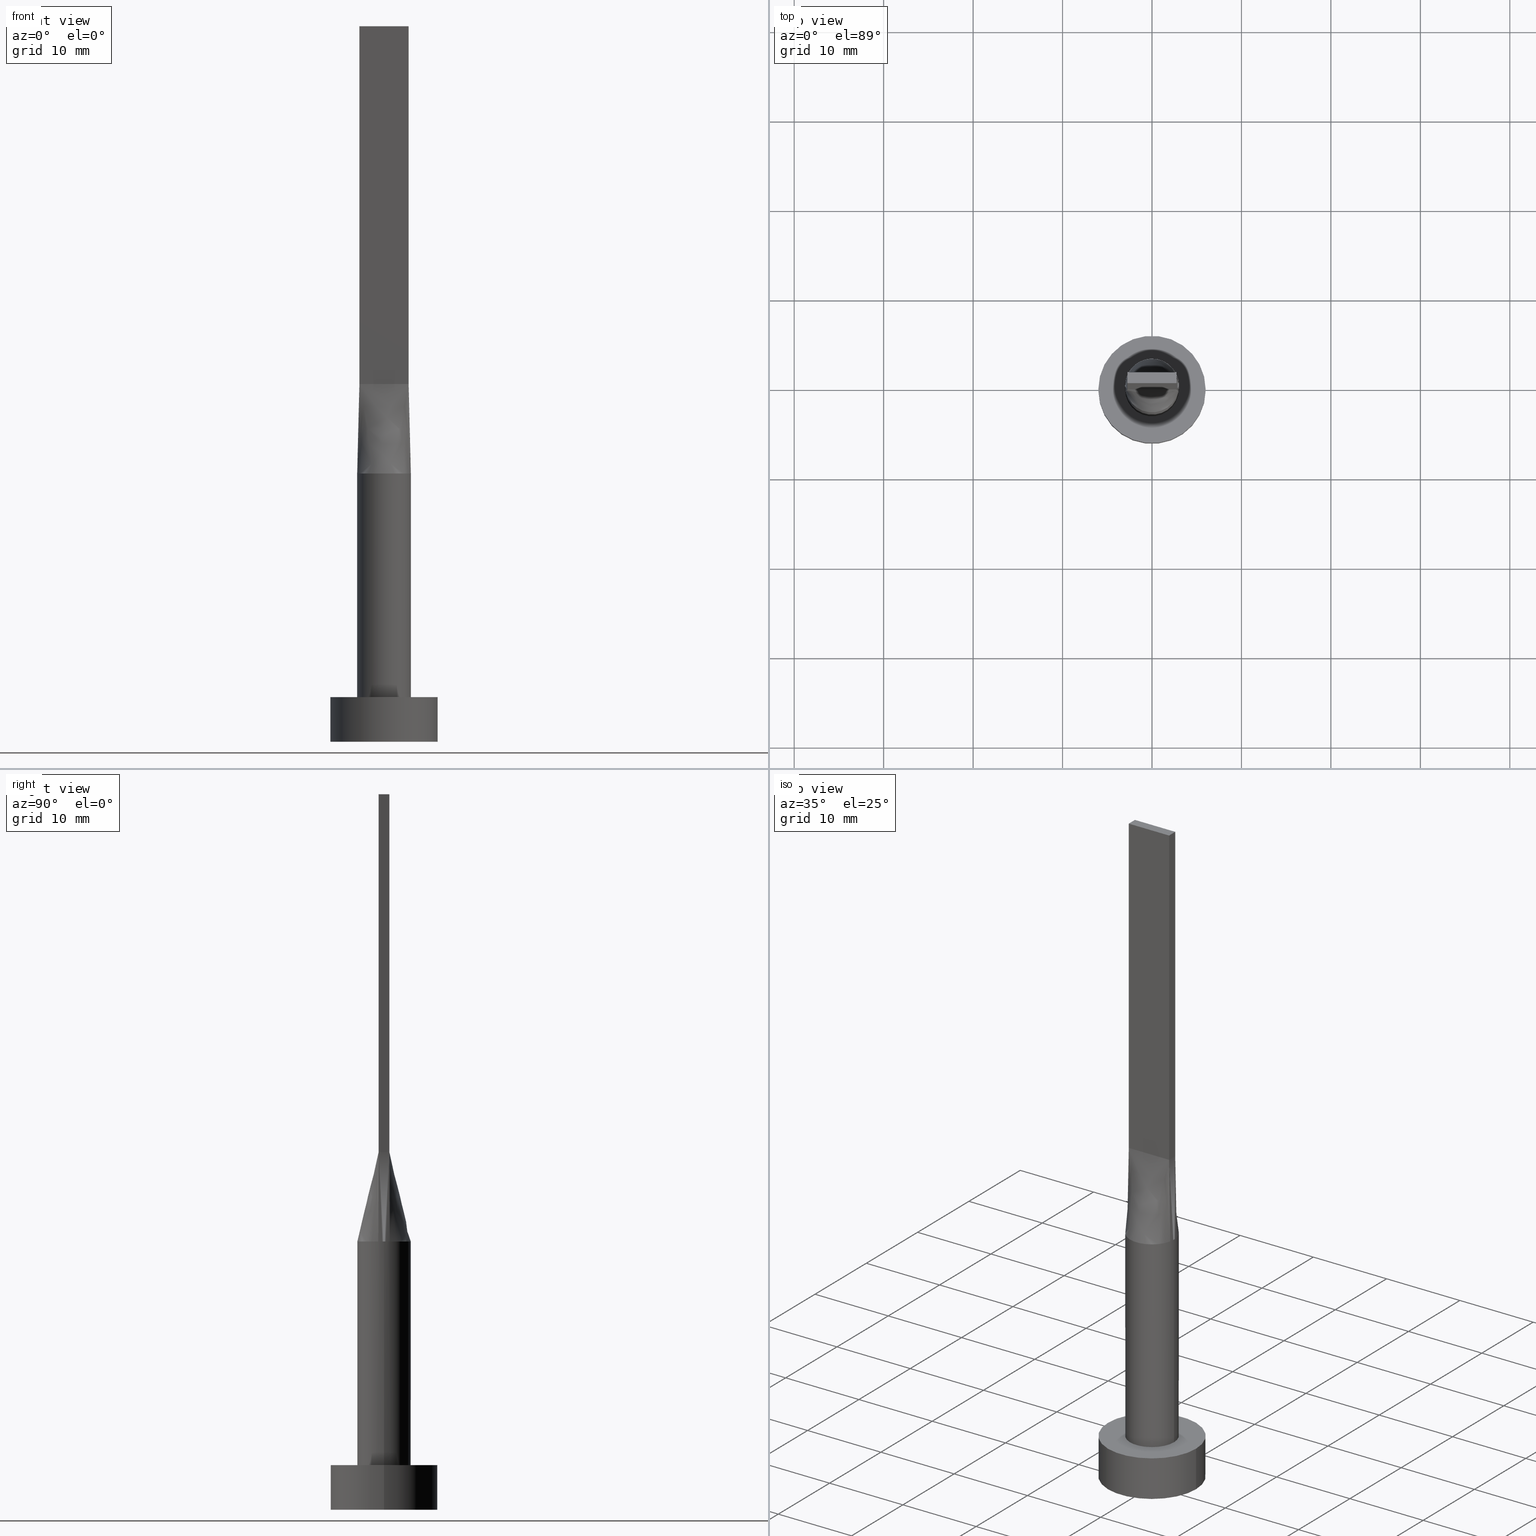
[diagram: canonical four-view strip — front | top / right | iso, engineering-drawing reading convention]
A machine part, canonical four-view strip (front | top / right | iso — engineering-drawing reading convention). The complete STEP part file that produces these views, byte-faithful:
ISO-10303-21;
HEADER;
FILE_DESCRIPTION (( 'STEP AP203' ),
    '1' );
FILE_NAME ('b819.STEP',
    '2023-02-13T10:30:02',
    ( '' ),
    ( '' ),
    'SwSTEP 2.0',
    'SolidWorks 2019',
    '' );
FILE_SCHEMA (( 'CONFIG_CONTROL_DESIGN' ));
ENDSEC;

DATA;
#1 = LINE ( 'NONE', #221, #503 ) ;
#2 = EDGE_CURVE ( 'NONE', #547, #362, #177, .T. ) ;
#3 = EDGE_LOOP ( 'NONE', ( #528, #130, #449, #303, #386, #399 ) ) ;
#4 = CARTESIAN_POINT ( 'NONE',  ( -2.750000000000000000, 0.6000000000000001998, 40.00000000000000000 ) ) ;
#5 = ORIENTED_EDGE ( 'NONE', *, *, #532, .T. ) ;
#6 = ORIENTED_EDGE ( 'NONE', *, *, #400, .T. ) ;
#7 = AXIS2_PLACEMENT_3D ( 'NONE', #405, #450, #363 ) ;
#8 = CARTESIAN_POINT ( 'NONE',  ( -2.520833333333333037, 0.6000000000000000888, 39.99999999999999289 ) ) ;
#9 = CARTESIAN_POINT ( 'NONE',  ( 2.750000000000000000, -0.5999999999999997558, 80.00000000000000000 ) ) ;
#10 = CARTESIAN_POINT ( 'NONE',  ( -2.518011668798964653, 1.657305971825549840, 30.00000000000000711 ) ) ;
#11 = CC_DESIGN_PERSON_AND_ORGANIZATION_ASSIGNMENT ( #373, #562, ( #297 ) ) ;
#12 = FACE_OUTER_BOUND ( 'NONE', #257, .T. ) ;
#13 = DIRECTION ( 'NONE',  ( -1.000000000000000000, 0.000000000000000000, 0.000000000000000000 ) ) ;
#14 = FACE_OUTER_BOUND ( 'NONE', #288, .T. ) ;
#15 = DIRECTION ( 'NONE',  ( 1.000000000000000000, 0.000000000000000000, -0.000000000000000000 ) ) ;
#16 = LOCAL_TIME ( 11, 30, 2.000000000000000000, #285 ) ;
#17 = DIRECTION ( 'NONE',  ( 0.000000000000000000, 0.000000000000000000, 1.000000000000000000 ) ) ;
#18 = CARTESIAN_POINT ( 'NONE',  ( 0.000000000000000000, 0.000000000000000000, 5.000000000000000000 ) ) ;
#19 = PERSON_AND_ORGANIZATION ( #459, #33 ) ;
#20 = APPROVAL_ROLE ( '' ) ;
#21 = VERTEX_POINT ( 'NONE', #229 ) ;
#22 = AXIS2_PLACEMENT_3D ( 'NONE', #18, #52, #398 ) ;
#23 = AXIS2_PLACEMENT_3D ( 'NONE', #389, #252, #581 ) ;
#24 = COORDINATED_UNIVERSAL_TIME_OFFSET ( 1, 0, .AHEAD. ) ;
#25 = FACE_OUTER_BOUND ( 'NONE', #454, .T. ) ;
#26 = CARTESIAN_POINT ( 'NONE',  ( -1.145833333333331705, -0.5999999999999994227, 39.99999999999999289 ) ) ;
#27 = EDGE_CURVE ( 'NONE', #94, #579, #192, .T. ) ;
#28 = ORIENTED_EDGE ( 'NONE', *, *, #573, .T. ) ;
#29 = LINE ( 'NONE', #544, #565 ) ;
#30 = PERSON_AND_ORGANIZATION_ROLE ( 'creator' ) ;
#31 = CARTESIAN_POINT ( 'NONE',  ( -2.931047284229977734, -0.6395012256501755310, 30.00000000000000355 ) ) ;
#32 = ORIENTED_EDGE ( 'NONE', *, *, #421, .F. ) ;
#33 = ORGANIZATION ( 'NEUR�EN�', 'NEUR�EN�', '' ) ;
#34 = CARTESIAN_POINT ( 'NONE',  ( -2.999603793582328315, -7.025298958605770567E-16, 30.00000000000000355 ) ) ;
#35 = CARTESIAN_POINT ( 'NONE',  ( -0.4583333333333322046, -0.5999999999999994227, 39.99999999999999289 ) ) ;
#36 = EDGE_LOOP ( 'NONE', ( #337, #500 ) ) ;
#37 = CARTESIAN_POINT ( 'NONE',  ( 1.517787371616672099, 2.616501225271827824, 30.00000000000000711 ) ) ;
#38 = PLANE ( 'NONE',  #7 ) ;
#39 = PRODUCT_DEFINITION ( 'NEZN�M�', '', #557, #382 ) ;
#40 = ORIENTED_EDGE ( 'NONE', *, *, #543, .F. ) ;
#41 = CARTESIAN_POINT ( 'NONE',  ( 2.328745122427009040, 1.922758842442225946, 30.00000000000000355 ) ) ;
#42 = EDGE_LOOP ( 'NONE', ( #5, #28, #307, #249 ) ) ;
#43 = UNCERTAINTY_MEASURE_WITH_UNIT (LENGTH_MEASURE( 1.000000000000000082E-05 ), #239, 'distance_accuracy_value', 'NONE');
#44 = ORIENTED_EDGE ( 'NONE', *, *, #199, .T. ) ;
#45 = ORIENTED_EDGE ( 'NONE', *, *, #493, .T. ) ;
#46 = AXIS2_PLACEMENT_3D ( 'NONE', #380, #290, #512 ) ;
#47 = PLANE ( 'NONE',  #410 ) ;
#48 = DIRECTION ( 'NONE',  ( -0.000000000000000000, -0.000000000000000000, -1.000000000000000000 ) ) ;
#49 = B_SPLINE_SURFACE_WITH_KNOTS ( 'NONE', 3, 1, ( 
 ( #266, #4 ),
 ( #176, #440 ),
 ( #446, #50 ),
 ( #312, #87 ),
 ( #55, #391 ),
 ( #353, #186 ) ),
 .UNSPECIFIED., .F., .F., .F.,
 ( 4, 2, 4 ),
 ( 2, 2 ),
 ( 0.000000000000000000, 0.5000000000000000000, 1.000000000000000000 ),
 ( 0.000000000000000000, 1.000000000000000000 ),
 .UNSPECIFIED. ) ;
#50 = CARTESIAN_POINT ( 'NONE',  ( -2.750000000000000000, 0.2000000000000000111, 39.99999999999999289 ) ) ;
#51 = LINE ( 'NONE', #167, #165 ) ;
#52 = DIRECTION ( 'NONE',  ( 0.000000000000000000, 0.000000000000000000, 1.000000000000000000 ) ) ;
#53 = EDGE_LOOP ( 'NONE', ( #392, #525, #56, #324 ) ) ;
#54 = LOCAL_TIME ( 11, 30, 2.000000000000000000, #553 ) ;
#55 = CARTESIAN_POINT ( 'NONE',  ( -2.976487486186430331, -0.4312336333497656105, 30.00000000000000355 ) ) ;
#56 = ORIENTED_EDGE ( 'NONE', *, *, #436, .F. ) ;
#57 = VERTEX_POINT ( 'NONE', #272 ) ;
#58 = APPROVAL_DATE_TIME ( #150, #73 ) ;
#59 = DIRECTION ( 'NONE',  ( 1.000000000000000000, 0.000000000000000000, 0.000000000000000000 ) ) ;
#60 = EDGE_CURVE ( 'NONE', #362, #547, #564, .T. ) ;
#61 = CARTESIAN_POINT ( 'NONE',  ( 2.328745122427008152, -1.922758842442226390, 29.99999999999999645 ) ) ;
#62 = APPLICATION_PROTOCOL_DEFINITION ( 'international standard', 'config_control_design', 1994, #96 ) ;
#63 = DIRECTION ( 'NONE',  ( -0.000000000000000000, -0.000000000000000000, -1.000000000000000000 ) ) ;
#64 = EDGE_CURVE ( 'NONE', #546, #278, #451, .T. ) ;
#65 = CC_DESIGN_APPROVAL ( #414, ( #557 ) ) ;
#66 = COORDINATED_UNIVERSAL_TIME_OFFSET ( 1, 0, .AHEAD. ) ;
#67 = CARTESIAN_POINT ( 'NONE',  ( -6.000000000000000888, 0.000000000000000000, 5.000000000000000000 ) ) ;
#68 = LINE ( 'NONE', #250, #502 ) ;
#69 = CARTESIAN_POINT ( 'NONE',  ( -2.750000000000000000, 0.6000000000000001998, 80.00000000000000000 ) ) ;
#70 = FACE_OUTER_BOUND ( 'NONE', #321, .T. ) ;
#71 = CARTESIAN_POINT ( 'NONE',  ( 1.829136458871247761, 2.402980488111650992, 30.00000000000001066 ) ) ;
#72 = CIRCLE ( 'NONE', #131, 3.000000000000000444 ) ;
#73 = APPROVAL ( #455, 'NEUR�EN�' ) ;
#74 = CIRCLE ( 'NONE', #23, 3.000000000000000444 ) ;
#75 = FACE_OUTER_BOUND ( 'NONE', #78, .T. ) ;
#76 = ORIENTED_EDGE ( 'NONE', *, *, #445, .T. ) ;
#77 = VERTEX_POINT ( 'NONE', #9 ) ;
#78 = EDGE_LOOP ( 'NONE', ( #260, #95 ) ) ;
#79 = CARTESIAN_POINT ( 'NONE',  ( -0.4026715616377299356, 2.999999999999999556, 30.00000000000001066 ) ) ;
#80 = CARTESIAN_POINT ( 'NONE',  ( -2.840523642114988867, -0.6197506128250873658, 35.00000000000000000 ) ) ;
#81 = DIRECTION ( 'NONE',  ( -0.000000000000000000, -0.000000000000000000, -1.000000000000000000 ) ) ;
#82 = VERTEX_POINT ( 'NONE', #309 ) ;
#83 = CIRCLE ( 'NONE', #343, 6.000000000000000888 ) ;
#84 = DIRECTION ( 'NONE',  ( -0.000000000000000000, -0.000000000000000000, -1.000000000000000000 ) ) ;
#85 = ORIENTED_EDGE ( 'NONE', *, *, #304, .T. ) ;
#86 = VERTEX_POINT ( 'NONE', #484 ) ;
#87 = CARTESIAN_POINT ( 'NONE',  ( -2.750000000000000000, -0.1999999999999998723, 39.99999999999999289 ) ) ;
#88 = CARTESIAN_POINT ( 'NONE',  ( -2.792624347712117761, 1.135030881087315313, 30.00000000000001066 ) ) ;
#89 = DIRECTION ( 'NONE',  ( -0.000000000000000000, 0.000000000000000000, -1.000000000000000000 ) ) ;
#90 = ORIENTED_EDGE ( 'NONE', *, *, #236, .T. ) ;
#91 = CARTESIAN_POINT ( 'NONE',  ( -2.750000000000000000, 0.6000000000000001998, 40.00000000000000000 ) ) ;
#92 = CARTESIAN_POINT ( 'NONE',  ( 2.999207587164657074, 0.2156168166748827775, 30.00000000000000355 ) ) ;
#93 = CARTESIAN_POINT ( 'NONE',  ( -2.931047284229977290, 0.6395012256501755310, 30.00000000000000355 ) ) ;
#94 = VERTEX_POINT ( 'NONE', #404 ) ;
#95 = ORIENTED_EDGE ( 'NONE', *, *, #60, .T. ) ;
#96 = APPLICATION_CONTEXT ( 'configuration controlled 3d designs of mechanical parts and assemblies' ) ;
#97 = APPROVAL_PERSON_ORGANIZATION ( #240, #414, #415 ) ;
#98 = CARTESIAN_POINT ( 'NONE',  ( -2.750000000000000000, -0.5999999999999994227, 80.00000000000000000 ) ) ;
#99 = CARTESIAN_POINT ( 'NONE',  ( -2.750000000000000000, 0.6000000000000001998, 40.00000000000000000 ) ) ;
#100 = DIRECTION ( 'NONE',  ( 0.000000000000000000, 0.000000000000000000, 1.000000000000000000 ) ) ;
#101 = CARTESIAN_POINT ( 'NONE',  ( 2.976487486186430331, 0.4312336333497658880, 30.00000000000000355 ) ) ;
#102 = LINE ( 'NONE', #574, #438 ) ;
#103 = PLANE ( 'NONE',  #533 ) ;
#104 = CALENDAR_DATE ( 2023, 13, 2 ) ;
#105 = CARTESIAN_POINT ( 'NONE',  ( -2.792624347712117761, 1.135030881087315313, 30.00000000000001066 ) ) ;
#106 = AXIS2_PLACEMENT_3D ( 'NONE', #132, #486, #541 ) ;
#107 = PERSON_AND_ORGANIZATION_ROLE ( 'design_owner' ) ;
#108 = ADVANCED_FACE ( 'NONE', ( #14 ), #133, .F. ) ;
#109 =( NAMED_UNIT ( * ) PLANE_ANGLE_UNIT ( ) SI_UNIT ( $, .RADIAN. ) );
#110 = CYLINDRICAL_SURFACE ( 'NONE', #377, 6.000000000000000888 ) ;
#111 = CARTESIAN_POINT ( 'NONE',  ( -0.2291666666666657692, -0.5999999999999995337, 39.99999999999999289 ) ) ;
#112 = PRODUCT ( 'b819', 'b819', '', ( #282 ) ) ;
#113 = AXIS2_PLACEMENT_3D ( 'NONE', #311, #524, #152 ) ;
#114 = DATE_AND_TIME ( #151, #354 ) ;
#115 = CARTESIAN_POINT ( 'NONE',  ( -1.517787371616672321, -2.616501225271827380, 30.00000000000000355 ) ) ;
#116 = ADVANCED_FACE ( 'NONE', ( #188 ), #183, .F. ) ;
#117 = CARTESIAN_POINT ( 'NONE',  ( 2.750000000000000000, 0.6000000000000001998, 80.00000000000000000 ) ) ;
#118 = CARTESIAN_POINT ( 'NONE',  ( 2.328745122427009040, 1.922758842442225946, 30.00000000000000355 ) ) ;
#119 = EDGE_CURVE ( 'NONE', #204, #488, #394, .T. ) ;
#120 = CARTESIAN_POINT ( 'NONE',  ( -0.4583333333333300397, 0.6000000000000000888, 39.99999999999999289 ) ) ;
#121 = CARTESIAN_POINT ( 'NONE',  ( -2.792624347712116428, -1.135030881087314647, 30.00000000000000355 ) ) ;
#122 = CARTESIAN_POINT ( 'NONE',  ( 1.517787371616672099, 2.616501225271827824, 30.00000000000000711 ) ) ;
#123 = CARTESIAN_POINT ( 'NONE',  ( 2.878980386154874616, 0.8781411751610636029, 30.00000000000000355 ) ) ;
#124 = CARTESIAN_POINT ( 'NONE',  ( 1.604166666666666963, -0.5999999999999996447, 39.99999999999999289 ) ) ;
#125 = CARTESIAN_POINT ( 'NONE',  ( -0.8041209001220690489, 2.916015559847871419, 30.00000000000001066 ) ) ;
#126 = EDGE_CURVE ( 'NONE', #390, #496, #102, .T. ) ;
#127 = VERTEX_POINT ( 'NONE', #161 ) ;
#128 = CARTESIAN_POINT ( 'NONE',  ( 2.750000000000000000, 0.6000000000000001998, 80.00000000000000000 ) ) ;
#129 = VECTOR ( 'NONE', #470, 1000.000000000000000 ) ;
#130 = ORIENTED_EDGE ( 'NONE', *, *, #126, .T. ) ;
#131 = AXIS2_PLACEMENT_3D ( 'NONE', #549, #187, #59 ) ;
#132 = CARTESIAN_POINT ( 'NONE',  ( 0.000000000000000000, 0.000000000000000000, 5.000000000000000000 ) ) ;
#133 = PLANE ( 'NONE',  #317 ) ;
#134 = ADVANCED_FACE ( 'NONE', ( #209 ), #340, .T. ) ;
#135 = CARTESIAN_POINT ( 'NONE',  ( 2.750000000000000000, -0.3999999999999994671, 39.99999999999999289 ) ) ;
#136 = LINE ( 'NONE', #347, #306 ) ;
#137 = ORIENTED_EDGE ( 'NONE', *, *, #199, .F. ) ;
#138 = CARTESIAN_POINT ( 'NONE',  ( 0.000000000000000000, 0.000000000000000000, 5.000000000000000000 ) ) ;
#139 = ORIENTED_EDGE ( 'NONE', *, *, #119, .F. ) ;
#140 = AXIS2_PLACEMENT_3D ( 'NONE', #467, #523, #301 ) ;
#141 = AXIS2_PLACEMENT_3D ( 'NONE', #403, #100, #277 ) ;
#142 = CARTESIAN_POINT ( 'NONE',  ( 2.931047284229977290, -0.6395012256501766412, 30.00000000000000355 ) ) ;
#143 = CARTESIAN_POINT ( 'NONE',  ( -2.750000000000000000, 0.6000000000000001998, 80.00000000000000000 ) ) ;
#144 = DIRECTION ( 'NONE',  ( 1.000000000000000000, 0.000000000000000000, 0.000000000000000000 ) ) ;
#145 = CARTESIAN_POINT ( 'NONE',  ( 2.520833333333333037, -0.5999999999999996447, 39.99999999999999289 ) ) ;
#146 = APPLICATION_PROTOCOL_DEFINITION ( 'international standard', 'config_control_design', 1994, #559 ) ;
#147 = CIRCLE ( 'NONE', #481, 3.000000000000000444 ) ;
#148 = ORIENTED_EDGE ( 'NONE', *, *, #379, .F. ) ;
#149 = PERSON_AND_ORGANIZATION ( #459, #33 ) ;
#150 = DATE_AND_TIME ( #237, #16 ) ;
#151 = CALENDAR_DATE ( 2023, 13, 2 ) ;
#152 = DIRECTION ( 'NONE',  ( 1.000000000000000000, -8.881784197001252323E-15, 0.000000000000000000 ) ) ;
#153 = CLOSED_SHELL ( 'NONE', ( #515, #511, #329, #225, #116, #365, #368, #284, #326, #480, #356, #108, #298, #234, #134 ) ) ;
#154 = VECTOR ( 'NONE', #401, 1000.000000000000000 ) ;
#155 = CARTESIAN_POINT ( 'NONE',  ( 1.833333333333333481, -0.5999999999999996447, 39.99999999999999289 ) ) ;
#156 = EDGE_CURVE ( 'NONE', #435, #546, #423, .T. ) ;
#157 = CARTESIAN_POINT ( 'NONE',  ( 6.000000000000000888, 7.347880794884120722E-16, 5.000000000000000000 ) ) ;
#158 = CARTESIAN_POINT ( 'NONE',  ( -2.750000000000000000, 0.6000000000000001998, 40.00000000000000000 ) ) ;
#159 = DIRECTION ( 'NONE',  ( 1.000000000000000000, 0.000000000000000000, 0.000000000000000000 ) ) ;
#160 = DIRECTION ( 'NONE',  ( 1.000000000000000000, -5.913830031739115543E-17, 0.000000000000000000 ) ) ;
#161 = CARTESIAN_POINT ( 'NONE',  ( -2.750000000000000000, -0.5999999999999994227, 40.00000000000000000 ) ) ;
#162 = ORIENTED_EDGE ( 'NONE', *, *, #436, .T. ) ;
#163 = CARTESIAN_POINT ( 'NONE',  ( 2.518011668798964209, 1.657305971825549840, 30.00000000000000355 ) ) ;
#164 = VECTOR ( 'NONE', #227, 1000.000000000000000 ) ;
#165 = VECTOR ( 'NONE', #48, 1000.000000000000000 ) ;
#166 = CARTESIAN_POINT ( 'NONE',  ( 2.840523642114988867, -0.6197506128250874768, 35.00000000000000000 ) ) ;
#167 = CARTESIAN_POINT ( 'NONE',  ( -3.000000000000000444, 0.000000000000000000, 30.00000000000000355 ) ) ;
#168 = CARTESIAN_POINT ( 'NONE',  ( -0.9166666666666637431, 0.6000000000000000888, 39.99999999999999289 ) ) ;
#169 = CARTESIAN_POINT ( 'NONE',  ( 2.750000000000000000, -0.5999999999999997558, 40.00000000000000000 ) ) ;
#170 = ORIENTED_EDGE ( 'NONE', *, *, #323, .F. ) ;
#171 = ORIENTED_EDGE ( 'NONE', *, *, #60, .F. ) ;
#172 = CARTESIAN_POINT ( 'NONE',  ( 0.9166666666666676289, -0.5999999999999996447, 39.99999999999999289 ) ) ;
#173 = FACE_OUTER_BOUND ( 'NONE', #42, .T. ) ;
#174 = ORIENTED_EDGE ( 'NONE', *, *, #313, .T. ) ;
#175 = CARTESIAN_POINT ( 'NONE',  ( -2.840523642114988423, 0.6197506128250878099, 35.00000000000000000 ) ) ;
#176 = CARTESIAN_POINT ( 'NONE',  ( -2.976487486186430331, 0.4312336333497662211, 30.00000000000000355 ) ) ;
#177 = CIRCLE ( 'NONE', #22, 6.000000000000000888 ) ;
#178 = AXIS2_PLACEMENT_3D ( 'NONE', #195, #413, #510 ) ;
#179 = ORIENTED_EDGE ( 'NONE', *, *, #119, .T. ) ;
#180 = CIRCLE ( 'NONE', #113, 3.000000000000000444 ) ;
#181 = EDGE_CURVE ( 'NONE', #77, #94, #68, .T. ) ;
#182 = CARTESIAN_POINT ( 'NONE',  ( -2.328745122427008152, 1.922758842442225280, 30.00000000000001066 ) ) ;
#183 = PLANE ( 'NONE',  #242 ) ;
#184 = ADVANCED_BREP_SHAPE_REPRESENTATION ( 'b819', ( #425, #178 ), #262 ) ;
#185 = LINE ( 'NONE', #175, #514 ) ;
#186 = CARTESIAN_POINT ( 'NONE',  ( -2.750000000000000000, -0.5999999999999995337, 40.00000000000000000 ) ) ;
#187 = DIRECTION ( 'NONE',  ( 0.000000000000000000, 0.000000000000000000, 1.000000000000000000 ) ) ;
#188 = FACE_OUTER_BOUND ( 'NONE', #441, .T. ) ;
#189 = EDGE_CURVE ( 'NONE', #520, #94, #332, .T. ) ;
#190 = CARTESIAN_POINT ( 'NONE',  ( 0.000000000000000000, 0.000000000000000000, 30.00000000000000355 ) ) ;
#191 = VECTOR ( 'NONE', #357, 1000.000000000000000 ) ;
#192 = LINE ( 'NONE', #355, #296 ) ;
#193 = DATE_AND_TIME ( #287, #429 ) ;
#194 = APPROVAL_ROLE ( '' ) ;
#195 = CARTESIAN_POINT ( 'NONE',  ( 0.000000000000000000, 0.000000000000000000, 0.000000000000000000 ) ) ;
#196 = SECURITY_CLASSIFICATION_LEVEL ( 'unclassified' ) ;
#197 = PERSON_AND_ORGANIZATION ( #459, #33 ) ;
#198 = CARTESIAN_POINT ( 'NONE',  ( -2.878980386154874616, -0.8781411751610622707, 29.99999999999999645 ) ) ;
#199 = EDGE_CURVE ( 'NONE', #362, #552, #255, .T. ) ;
#200 = CARTESIAN_POINT ( 'NONE',  ( 3.000000000000000444, 3.673940397442060361E-16, 5.000000000000000000 ) ) ;
#201 = CARTESIAN_POINT ( 'NONE',  ( -0.9166666666666650753, -0.5999999999999994227, 39.99999999999999289 ) ) ;
#202 = VERTEX_POINT ( 'NONE', #426 ) ;
#203 = CARTESIAN_POINT ( 'NONE',  ( -0.4026715616377306572, -3.000000000000000000, 30.00000000000000711 ) ) ;
#204 = VERTEX_POINT ( 'NONE', #34 ) ;
#205 = ORIENTED_EDGE ( 'NONE', *, *, #217, .T. ) ;
#206 = CARTESIAN_POINT ( 'NONE',  ( -1.829136458871247761, 2.402980488111649660, 30.00000000000000000 ) ) ;
#207 = CARTESIAN_POINT ( 'NONE',  ( 1.604166666666669183, 0.6000000000000000888, 39.99999999999999289 ) ) ;
#208 = CARTESIAN_POINT ( 'NONE',  ( 2.518011668798964209, -1.657305971825550506, 30.00000000000000711 ) ) ;
#209 = FACE_OUTER_BOUND ( 'NONE', #428, .T. ) ;
#210 = CARTESIAN_POINT ( 'NONE',  ( 2.878980386154875060, -0.8781411751610634919, 30.00000000000000711 ) ) ;
#211 = VECTOR ( 'NONE', #572, 1000.000000000000114 ) ;
#212 = EDGE_LOOP ( 'NONE', ( #279, #90, #174, #220, #233 ) ) ;
#213 = ORIENTED_EDGE ( 'NONE', *, *, #409, .T. ) ;
#214 = CARTESIAN_POINT ( 'NONE',  ( -1.517787371616671654, 2.616501225271827380, 30.00000000000001066 ) ) ;
#215 = LINE ( 'NONE', #478, #465 ) ;
#216 = LINE ( 'NONE', #308, #416 ) ;
#217 = EDGE_CURVE ( 'NONE', #278, #127, #378, .T. ) ;
#218 = ORIENTED_EDGE ( 'NONE', *, *, #2, .F. ) ;
#219 = ORIENTED_EDGE ( 'NONE', *, *, #319, .F. ) ;
#220 = ORIENTED_EDGE ( 'NONE', *, *, #27, .F. ) ;
#221 = CARTESIAN_POINT ( 'NONE',  ( 2.840523642114988867, 0.6197506128250880320, 35.00000000000000000 ) ) ;
#222 = CARTESIAN_POINT ( 'NONE',  ( -6.000000000000000888, 0.000000000000000000, 5.000000000000000000 ) ) ;
#223 = ORIENTED_EDGE ( 'NONE', *, *, #522, .T. ) ;
#224 = FACE_OUTER_BOUND ( 'NONE', #376, .T. ) ;
#225 = ADVANCED_FACE ( 'NONE', ( #294, #75 ), #38, .T. ) ;
#226 = CARTESIAN_POINT ( 'NONE',  ( 2.750000000000000000, -0.5999999999999997558, 80.00000000000000000 ) ) ;
#227 = DIRECTION ( 'NONE',  ( -0.000000000000000000, -0.000000000000000000, -1.000000000000000000 ) ) ;
#228 = FACE_OUTER_BOUND ( 'NONE', #568, .T. ) ;
#229 = CARTESIAN_POINT ( 'NONE',  ( 2.931303352270923757, 0.6395574164693091923, 30.00000000000000355 ) ) ;
#230 = CARTESIAN_POINT ( 'NONE',  ( 1.829136458871248205, -2.402980488111650992, 30.00000000000000355 ) ) ;
#231 = PERSON_AND_ORGANIZATION_ROLE ( 'creator' ) ;
#232 = VECTOR ( 'NONE', #84, 1000.000000000000000 ) ;
#233 = ORIENTED_EDGE ( 'NONE', *, *, #189, .F. ) ;
#234 = ADVANCED_FACE ( 'NONE', ( #228 ), #103, .F. ) ;
#235 = PERSON_AND_ORGANIZATION ( #459, #33 ) ;
#236 = EDGE_CURVE ( 'NONE', #390, #21, #72, .T. ) ;
#237 = CALENDAR_DATE ( 2023, 13, 2 ) ;
#238 = DIRECTION ( 'NONE',  ( -0.000000000000000000, -0.000000000000000000, -1.000000000000000000 ) ) ;
#239 =( LENGTH_UNIT ( ) NAMED_UNIT ( * ) SI_UNIT ( .MILLI., .METRE. ) );
#240 = PERSON_AND_ORGANIZATION ( #459, #33 ) ;
#241 = PLANE ( 'NONE',  #395 ) ;
#242 = AXIS2_PLACEMENT_3D ( 'NONE', #359, #540, #15 ) ;
#243 = VECTOR ( 'NONE', #538, 1000.000000000000000 ) ;
#244 = APPROVAL_STATUS ( 'not_yet_approved' ) ;
#245 = CARTESIAN_POINT ( 'NONE',  ( 0.000000000000000000, 0.000000000000000000, 5.000000000000000000 ) ) ;
#246 = CC_DESIGN_PERSON_AND_ORGANIZATION_ASSIGNMENT ( #235, #107, ( #112 ) ) ;
#247 = DIRECTION ( 'NONE',  ( -1.000000000000000000, 0.000000000000000000, 0.000000000000000000 ) ) ;
#248 = CARTESIAN_POINT ( 'NONE',  ( -1.829136458871248427, -2.402980488111649660, 29.99999999999998579 ) ) ;
#249 = ORIENTED_EDGE ( 'NONE', *, *, #313, .F. ) ;
#250 = CARTESIAN_POINT ( 'NONE',  ( 2.750000000000000000, -0.5999999999999997558, 80.00000000000000000 ) ) ;
#251 = ORIENTED_EDGE ( 'NONE', *, *, #445, .F. ) ;
#252 = DIRECTION ( 'NONE',  ( 0.000000000000000000, 0.000000000000000000, 1.000000000000000000 ) ) ;
#253 = CC_DESIGN_SECURITY_CLASSIFICATION ( #297, ( #557 ) ) ;
#254 = LINE ( 'NONE', #80, #211 ) ;
#255 = LINE ( 'NONE', #259, #479 ) ;
#256 = CARTESIAN_POINT ( 'NONE',  ( 0.4583333333333366455, 0.6000000000000000888, 39.99999999999999289 ) ) ;
#257 = EDGE_LOOP ( 'NONE', ( #412, #468, #267, #518 ) ) ;
#258 = CARTESIAN_POINT ( 'NONE',  ( -0.2291666666666632990, 0.6000000000000000888, 39.99999999999999289 ) ) ;
#259 = CARTESIAN_POINT ( 'NONE',  ( 6.000000000000000888, 7.347880794884120722E-16, 5.000000000000000000 ) ) ;
#260 = ORIENTED_EDGE ( 'NONE', *, *, #2, .T. ) ;
#261 = CARTESIAN_POINT ( 'NONE',  ( 2.750000000000000000, 0.6000000000000001998, 80.00000000000000000 ) ) ;
#262 =( GEOMETRIC_REPRESENTATION_CONTEXT ( 3 ) GLOBAL_UNCERTAINTY_ASSIGNED_CONTEXT ( ( #43 ) ) GLOBAL_UNIT_ASSIGNED_CONTEXT ( ( #239, #109, #507 ) ) REPRESENTATION_CONTEXT ( 'NONE', 'WORKASPACE' ) );
#263 = CARTESIAN_POINT ( 'NONE',  ( 0.000000000000000000, 0.000000000000000000, 30.00000000000000355 ) ) ;
#264 = EDGE_LOOP ( 'NONE', ( #76, #310, #32, #223 ) ) ;
#265 = EDGE_CURVE ( 'NONE', #496, #86, #147, .T. ) ;
#266 = CARTESIAN_POINT ( 'NONE',  ( -2.931047284229977290, 0.6395012256501761971, 30.00000000000000355 ) ) ;
#267 = ORIENTED_EDGE ( 'NONE', *, *, #156, .F. ) ;
#268 = DIRECTION ( 'NONE',  ( -1.000000000000000000, 5.913830031739115543E-17, 0.000000000000000000 ) ) ;
#269 = CARTESIAN_POINT ( 'NONE',  ( 2.999603793582328759, 7.166726372340513095E-16, 30.00000000000000355 ) ) ;
#270 = DIRECTION ( 'NONE',  ( 0.000000000000000000, 0.000000000000000000, 1.000000000000000000 ) ) ;
#271 = CARTESIAN_POINT ( 'NONE',  ( -2.291666666666665630, 0.6000000000000000888, 39.99999999999999289 ) ) ;
#272 = CARTESIAN_POINT ( 'NONE',  ( -2.931320679040856803, 0.6395611071856786012, 30.00000000000000355 ) ) ;
#273 = ORIENTED_EDGE ( 'NONE', *, *, #304, .F. ) ;
#274 = DIRECTION ( 'NONE',  ( 0.000000000000000000, 0.000000000000000000, 1.000000000000000000 ) ) ;
#275 = CIRCLE ( 'NONE', #439, 3.000000000000000444 ) ;
#276 = DIRECTION ( 'NONE',  ( 5.913830031739115543E-17, 1.000000000000000000, -0.000000000000000000 ) ) ;
#277 = DIRECTION ( 'NONE',  ( 1.000000000000000000, 0.000000000000000000, 0.000000000000000000 ) ) ;
#278 = VERTEX_POINT ( 'NONE', #99 ) ;
#279 = ORIENTED_EDGE ( 'NONE', *, *, #543, .T. ) ;
#280 = CARTESIAN_POINT ( 'NONE',  ( 2.750000000000000000, 0.4000000000000004108, 39.99999999999999289 ) ) ;
#281 = DIRECTION ( 'NONE',  ( -0.000000000000000000, 1.000000000000000000, -0.000000000000000000 ) ) ;
#282 = MECHANICAL_CONTEXT ( 'NONE', #559, 'mechanical' ) ;
#283 = CIRCLE ( 'NONE', #141, 6.000000000000000888 ) ;
#284 = ADVANCED_FACE ( 'NONE', ( #358 ), #474, .T. ) ;
#285 = COORDINATED_UNIVERSAL_TIME_OFFSET ( 1, 0, .AHEAD. ) ;
#286 = ORIENTED_EDGE ( 'NONE', *, *, #485, .T. ) ;
#287 = CALENDAR_DATE ( 2023, 13, 2 ) ;
#288 = EDGE_LOOP ( 'NONE', ( #205, #148, #219, #424 ) ) ;
#289 = DIRECTION ( 'NONE',  ( -1.000000000000000000, 0.000000000000000000, 0.000000000000000000 ) ) ;
#290 = DIRECTION ( 'NONE',  ( -0.000000000000000000, -0.000000000000000000, -1.000000000000000000 ) ) ;
#291 = CARTESIAN_POINT ( 'NONE',  ( -2.520833333333333037, -0.5999999999999994227, 39.99999999999999289 ) ) ;
#292 = ORIENTED_EDGE ( 'NONE', *, *, #493, .F. ) ;
#293 = CARTESIAN_POINT ( 'NONE',  ( -1.517787371616671654, 2.616501225271827380, 30.00000000000001066 ) ) ;
#294 = FACE_BOUND ( 'NONE', #36, .T. ) ;
#295 = CARTESIAN_POINT ( 'NONE',  ( 0.9166666666666698493, 0.6000000000000000888, 39.99999999999999289 ) ) ;
#296 = VECTOR ( 'NONE', #281, 1000.000000000000000 ) ;
#297 = SECURITY_CLASSIFICATION ( '', '', #196 ) ;
#298 = ADVANCED_FACE ( 'NONE', ( #551 ), #47, .F. ) ;
#299 = CARTESIAN_POINT ( 'NONE',  ( 2.792624347712116872, 1.135030881087315979, 30.00000000000001066 ) ) ;
#300 = CARTESIAN_POINT ( 'NONE',  ( 2.291666666666666519, -0.5999999999999996447, 39.99999999999999289 ) ) ;
#301 = DIRECTION ( 'NONE',  ( 1.000000000000000000, 0.000000000000000000, -0.000000000000000000 ) ) ;
#302 = ORIENTED_EDGE ( 'NONE', *, *, #432, .T. ) ;
#303 = ORIENTED_EDGE ( 'NONE', *, *, #409, .F. ) ;
#304 = EDGE_CURVE ( 'NONE', #77, #435, #216, .T. ) ;
#305 = VECTOR ( 'NONE', #519, 1000.000000000000000 ) ;
#306 = VECTOR ( 'NONE', #314, 1000.000000000000000 ) ;
#307 = ORIENTED_EDGE ( 'NONE', *, *, #349, .F. ) ;
#308 = CARTESIAN_POINT ( 'NONE',  ( 2.750000000000000000, -0.5999999999999997558, 80.00000000000000000 ) ) ;
#309 = CARTESIAN_POINT ( 'NONE',  ( -2.750000000000000000, -0.5999999999999994227, 80.00000000000000000 ) ) ;
#310 = ORIENTED_EDGE ( 'NONE', *, *, #189, .T. ) ;
#311 = CARTESIAN_POINT ( 'NONE',  ( 0.000000000000000000, 0.000000000000000000, 30.00000000000000355 ) ) ;
#312 = CARTESIAN_POINT ( 'NONE',  ( -2.999207587164656630, -0.2156168166748826387, 30.00000000000000355 ) ) ;
#313 = EDGE_CURVE ( 'NONE', #21, #579, #1, .T. ) ;
#314 = DIRECTION ( 'NONE',  ( 1.000000000000000000, -5.913830031739115543E-17, 0.000000000000000000 ) ) ;
#315 = CARTESIAN_POINT ( 'NONE',  ( 0.000000000000000000, 0.000000000000000000, 5.000000000000000000 ) ) ;
#316 = CARTESIAN_POINT ( 'NONE',  ( 2.750000000000000000, -0.1999999999999993727, 39.99999999999999289 ) ) ;
#317 = AXIS2_PLACEMENT_3D ( 'NONE', #143, #407, #89 ) ;
#318 = APPROVAL_PERSON_ORGANIZATION ( #464, #73, #20 ) ;
#319 = EDGE_CURVE ( 'NONE', #546, #82, #396, .T. ) ;
#320 = CARTESIAN_POINT ( 'NONE',  ( 0.000000000000000000, 0.000000000000000000, 5.000000000000000000 ) ) ;
#321 = EDGE_LOOP ( 'NONE', ( #504, #40, #251, #139, #213, #286 ) ) ;
#322 = DATE_AND_TIME ( #370, #54 ) ;
#323 = EDGE_CURVE ( 'NONE', #435, #579, #537, .T. ) ;
#324 = ORIENTED_EDGE ( 'NONE', *, *, #379, .T. ) ;
#325 = AXIS2_PLACEMENT_3D ( 'NONE', #138, #550, #144 ) ;
#326 = ADVANCED_FACE ( 'NONE', ( #224 ), #49, .T. ) ;
#327 = DATE_TIME_ROLE ( 'creation_date' ) ;
#328 = CARTESIAN_POINT ( 'NONE',  ( 0.4026715616377294915, 2.999999999999999556, 30.00000000000000711 ) ) ;
#329 = ADVANCED_FACE ( 'NONE', ( #442 ), #360, .T. ) ;
#330 = CARTESIAN_POINT ( 'NONE',  ( 2.750000000000000000, 0.6000000000000001998, 80.00000000000000000 ) ) ;
#331 = CYLINDRICAL_SURFACE ( 'NONE', #366, 3.000000000000000444 ) ;
#332 = LINE ( 'NONE', #166, #463 ) ;
#333 = CARTESIAN_POINT ( 'NONE',  ( -1.833333333333331705, -0.5999999999999994227, 39.99999999999999289 ) ) ;
#334 = CC_DESIGN_APPROVAL ( #73, ( #39 ) ) ;
#335 = CARTESIAN_POINT ( 'NONE',  ( 0.4026715616377293805, -3.000000000000001332, 30.00000000000001066 ) ) ;
#336 = CARTESIAN_POINT ( 'NONE',  ( 2.792624347712116872, -1.135030881087315757, 30.00000000000001421 ) ) ;
#337 = ORIENTED_EDGE ( 'NONE', *, *, #485, .F. ) ;
#338 = CARTESIAN_POINT ( 'NONE',  ( 1.145833333333336368, 0.6000000000000000888, 39.99999999999999289 ) ) ;
#339 = B_SPLINE_SURFACE_WITH_KNOTS ( 'NONE', 3, 1, ( 
 ( #529, #475 ),
 ( #123, #430 ),
 ( #299, #521 ),
 ( #163, #381 ),
 ( #41, #207 ),
 ( #571, #338 ),
 ( #122, #295 ),
 ( #385, #256 ),
 ( #342, #526 ),
 ( #79, #258 ),
 ( #125, #120 ),
 ( #293, #168 ),
 ( #527, #536 ),
 ( #182, #487 ),
 ( #545, #539 ),
 ( #88, #271 ),
 ( #397, #8 ),
 ( #93, #495 ) ),
 .UNSPECIFIED., .F., .F., .F.,
 ( 4, 2, 2, 2, 2, 2, 2, 2, 4 ),
 ( 2, 2 ),
 ( 0.000000000000000000, 0.1250000000000000000, 0.2500000000000000000, 0.3750000000000000000, 0.5000000000000000000, 0.6250000000000000000, 0.7500000000000000000, 0.8750000000000000000, 1.000000000000000000 ),
 ( 0.000000000000000000, 1.000000000000000000 ),
 .UNSPECIFIED. ) ;
#340 = PLANE ( 'NONE',  #140 ) ;
#341 = ORIENTED_EDGE ( 'NONE', *, *, #319, .T. ) ;
#342 = CARTESIAN_POINT ( 'NONE',  ( 0.4026715616377294915, 2.999999999999999556, 30.00000000000000711 ) ) ;
#343 = AXIS2_PLACEMENT_3D ( 'NONE', #535, #270, #159 ) ;
#344 = DIRECTION ( 'NONE',  ( -0.01810162078030962476, 0.003949444533885597061, 0.9998283518749604415 ) ) ;
#345 = ORIENTED_EDGE ( 'NONE', *, *, #400, .F. ) ;
#346 = CARTESIAN_POINT ( 'NONE',  ( -0.4026715616377299356, 2.999999999999999556, 30.00000000000001066 ) ) ;
#347 = CARTESIAN_POINT ( 'NONE',  ( -2.750000000000000000, -0.5999999999999994227, 40.00000000000000000 ) ) ;
#348 = CARTESIAN_POINT ( 'NONE',  ( 2.878980386154874616, 0.8781411751610636029, 30.00000000000000355 ) ) ;
#349 = EDGE_CURVE ( 'NONE', #579, #278, #489, .T. ) ;
#350 = ORIENTED_EDGE ( 'NONE', *, *, #578, .F. ) ;
#351 = DIRECTION ( 'NONE',  ( -0.01810162078030962476, -0.003949444533885606602, 0.9998283518749604415 ) ) ;
#352 = DIRECTION ( 'NONE',  ( 0.01810162078030958313, -0.003949444533885575377, 0.9998283518749604415 ) ) ;
#353 = CARTESIAN_POINT ( 'NONE',  ( -2.931047284229977734, -0.6395012256501755310, 30.00000000000000355 ) ) ;
#354 = LOCAL_TIME ( 11, 30, 2.000000000000000000, #560 ) ;
#355 = CARTESIAN_POINT ( 'NONE',  ( 2.750000000000000000, 0.6000000000000001998, 40.00000000000000000 ) ) ;
#356 = ADVANCED_FACE ( 'NONE', ( #12 ), #241, .F. ) ;
#357 = DIRECTION ( 'NONE',  ( 0.000000000000000000, -1.000000000000000000, 0.000000000000000000 ) ) ;
#358 = FACE_OUTER_BOUND ( 'NONE', #212, .T. ) ;
#359 = CARTESIAN_POINT ( 'NONE',  ( 0.000000000000000000, 0.000000000000000000, 0.000000000000000000 ) ) ;
#360 = CYLINDRICAL_SURFACE ( 'NONE', #106, 6.000000000000000888 ) ;
#361 = DIRECTION ( 'NONE',  ( 0.000000000000000000, 0.000000000000000000, 1.000000000000000000 ) ) ;
#362 = VERTEX_POINT ( 'NONE', #157 ) ;
#363 = DIRECTION ( 'NONE',  ( 1.000000000000000000, 0.000000000000000000, -0.000000000000000000 ) ) ;
#364 = DIRECTION ( 'NONE',  ( 0.000000000000000000, 0.000000000000000000, 1.000000000000000000 ) ) ;
#365 = ADVANCED_FACE ( 'NONE', ( #70 ), #427, .T. ) ;
#366 = AXIS2_PLACEMENT_3D ( 'NONE', #466, #238, #247 ) ;
#367 = CARTESIAN_POINT ( 'NONE',  ( -2.750000000000000000, 0.6000000000000001998, 80.00000000000000000 ) ) ;
#368 = ADVANCED_FACE ( 'NONE', ( #563 ), #461, .T. ) ;
#369 = APPROVAL_STATUS ( 'not_yet_approved' ) ;
#370 = CALENDAR_DATE ( 2023, 13, 2 ) ;
#371 = CARTESIAN_POINT ( 'NONE',  ( 1.517787371616671876, -2.616501225271829156, 30.00000000000002132 ) ) ;
#372 = PRODUCT_RELATED_PRODUCT_CATEGORY ( 'detail', '', ( #112 ) ) ;
#373 = PERSON_AND_ORGANIZATION ( #459, #33 ) ;
#374 = PERSON_AND_ORGANIZATION_ROLE ( 'design_supplier' ) ;
#375 = CARTESIAN_POINT ( 'NONE',  ( -2.518011668798964653, -1.657305971825550062, 30.00000000000000711 ) ) ;
#376 = EDGE_LOOP ( 'NONE', ( #302, #179, #492, #570, #462 ) ) ;
#377 = AXIS2_PLACEMENT_3D ( 'NONE', #245, #63, #289 ) ;
#378 = LINE ( 'NONE', #158, #305 ) ;
#379 = EDGE_CURVE ( 'NONE', #82, #127, #29, .T. ) ;
#380 = CARTESIAN_POINT ( 'NONE',  ( 0.000000000000000000, 0.000000000000000000, 30.00000000000000355 ) ) ;
#381 = CARTESIAN_POINT ( 'NONE',  ( 1.833333333333335258, 0.6000000000000000888, 39.99999999999999289 ) ) ;
#382 = DESIGN_CONTEXT ( 'detailed design', #96, 'design' ) ;
#383 = CARTESIAN_POINT ( 'NONE',  ( 2.931303352270923757, 0.6395574164693091923, 30.00000000000000355 ) ) ;
#384 = CARTESIAN_POINT ( 'NONE',  ( -2.328745122427008152, 1.922758842442225280, 30.00000000000001066 ) ) ;
#385 = CARTESIAN_POINT ( 'NONE',  ( 0.8041209001220689379, 2.916015559847871863, 30.00000000000001066 ) ) ;
#386 = ORIENTED_EDGE ( 'NONE', *, *, #432, .F. ) ;
#387 = CC_DESIGN_APPROVAL ( #561, ( #297 ) ) ;
#388 = CARTESIAN_POINT ( 'NONE',  ( 6.000000000000000888, 7.347880794884120722E-16, 0.000000000000000000 ) ) ;
#389 = CARTESIAN_POINT ( 'NONE',  ( 0.000000000000000000, 0.000000000000000000, 30.00000000000000355 ) ) ;
#390 = VERTEX_POINT ( 'NONE', #269 ) ;
#391 = CARTESIAN_POINT ( 'NONE',  ( -2.750000000000000000, -0.3999999999999997446, 39.99999999999999289 ) ) ;
#392 = ORIENTED_EDGE ( 'NONE', *, *, #421, .T. ) ;
#393 = CARTESIAN_POINT ( 'NONE',  ( -2.931320679040856803, 0.6395611071856786012, 30.00000000000000355 ) ) ;
#394 = CIRCLE ( 'NONE', #575, 3.000000000000000444 ) ;
#395 = AXIS2_PLACEMENT_3D ( 'NONE', #330, #420, #472 ) ;
#396 = LINE ( 'NONE', #530, #191 ) ;
#397 = CARTESIAN_POINT ( 'NONE',  ( -2.878980386154874616, 0.8781411751610629368, 30.00000000000001421 ) ) ;
#398 = DIRECTION ( 'NONE',  ( 1.000000000000000000, 0.000000000000000000, 0.000000000000000000 ) ) ;
#399 = ORIENTED_EDGE ( 'NONE', *, *, #532, .F. ) ;
#400 = EDGE_CURVE ( 'NONE', #547, #202, #443, .T. ) ;
#401 = DIRECTION ( 'NONE',  ( -1.000000000000000000, -0.000000000000000000, -0.000000000000000000 ) ) ;
#402 = DIRECTION ( 'NONE',  ( 1.000000000000000000, 0.000000000000000000, 0.000000000000000000 ) ) ;
#403 = CARTESIAN_POINT ( 'NONE',  ( 0.000000000000000000, 0.000000000000000000, 0.000000000000000000 ) ) ;
#404 = CARTESIAN_POINT ( 'NONE',  ( 2.750000000000000000, -0.5999999999999997558, 40.00000000000000000 ) ) ;
#405 = CARTESIAN_POINT ( 'NONE',  ( 0.000000000000000000, 0.000000000000000000, 5.000000000000000000 ) ) ;
#406 = DIRECTION ( 'NONE',  ( 1.000000000000000000, 0.000000000000000000, 0.000000000000000000 ) ) ;
#407 = DIRECTION ( 'NONE',  ( 1.000000000000000000, 0.000000000000000000, -0.000000000000000000 ) ) ;
#408 = CARTESIAN_POINT ( 'NONE',  ( 2.931047284229977734, 0.6395012256501758641, 30.00000000000000355 ) ) ;
#409 = EDGE_CURVE ( 'NONE', #204, #86, #51, .T. ) ;
#410 = AXIS2_PLACEMENT_3D ( 'NONE', #98, #276, #268 ) ;
#411 = DATE_TIME_ROLE ( 'classification_date' ) ;
#412 = ORIENTED_EDGE ( 'NONE', *, *, #349, .T. ) ;
#413 = DIRECTION ( 'NONE',  ( 0.000000000000000000, 0.000000000000000000, 1.000000000000000000 ) ) ;
#414 = APPROVAL ( #244, 'NEUR�EN�' ) ;
#415 = APPROVAL_ROLE ( '' ) ;
#416 = VECTOR ( 'NONE', #482, 1000.000000000000000 ) ;
#417 = CARTESIAN_POINT ( 'NONE',  ( -2.750000000000000000, -0.5999999999999994227, 40.00000000000000000 ) ) ;
#418 = CARTESIAN_POINT ( 'NONE',  ( 2.750000000000000000, -0.5999999999999997558, 40.00000000000000000 ) ) ;
#419 = PERSON_AND_ORGANIZATION ( #459, #33 ) ;
#420 = DIRECTION ( 'NONE',  ( 0.000000000000000000, -1.000000000000000000, 0.000000000000000000 ) ) ;
#421 = EDGE_CURVE ( 'NONE', #127, #94, #136, .T. ) ;
#422 = CARTESIAN_POINT ( 'NONE',  ( 2.931332910560268790, -0.6395638358681950963, 30.00000000000000355 ) ) ;
#423 = LINE ( 'NONE', #117, #129 ) ;
#424 = ORIENTED_EDGE ( 'NONE', *, *, #64, .T. ) ;
#425 = MANIFOLD_SOLID_BREP ( 'P�idat vysunut�m5', #153 ) ;
#426 = CARTESIAN_POINT ( 'NONE',  ( -6.000000000000000888, 0.000000000000000000, 0.000000000000000000 ) ) ;
#427 = CYLINDRICAL_SURFACE ( 'NONE', #46, 3.000000000000000444 ) ;
#428 = EDGE_LOOP ( 'NONE', ( #558, #341, #162, #85 ) ) ;
#429 = LOCAL_TIME ( 11, 30, 2.000000000000000000, #66 ) ;
#430 = CARTESIAN_POINT ( 'NONE',  ( 2.520833333333333925, 0.6000000000000000888, 39.99999999999999289 ) ) ;
#431 = EDGE_LOOP ( 'NONE', ( #137, #218, #6, #45 ) ) ;
#432 = EDGE_CURVE ( 'NONE', #57, #204, #275, .T. ) ;
#433 = PRODUCT_DEFINITION_SHAPE ( 'NONE', 'NONE',  #39 ) ;
#434 = CARTESIAN_POINT ( 'NONE',  ( -0.8041209001220690489, 2.916015559847871419, 30.00000000000001066 ) ) ;
#435 = VERTEX_POINT ( 'NONE', #261 ) ;
#436 = EDGE_CURVE ( 'NONE', #82, #77, #215, .T. ) ;
#437 = DIRECTION ( 'NONE',  ( -0.000000000000000000, -0.000000000000000000, -1.000000000000000000 ) ) ;
#438 = VECTOR ( 'NONE', #566, 1000.000000000000000 ) ;
#439 = AXIS2_PLACEMENT_3D ( 'NONE', #263, #491, #402 ) ;
#440 = CARTESIAN_POINT ( 'NONE',  ( -2.750000000000000000, 0.4000000000000000222, 39.99999999999999289 ) ) ;
#441 = EDGE_LOOP ( 'NONE', ( #292, #350 ) ) ;
#442 = FACE_OUTER_BOUND ( 'NONE', #431, .T. ) ;
#443 = LINE ( 'NONE', #222, #243 ) ;
#444 = CARTESIAN_POINT ( 'NONE',  ( 2.750000000000000000, 0.6000000000000001998, 40.00000000000000000 ) ) ;
#445 = EDGE_CURVE ( 'NONE', #488, #520, #74, .T. ) ;
#446 = CARTESIAN_POINT ( 'NONE',  ( -2.999207587164656630, 0.2156168166748832771, 30.00000000000000355 ) ) ;
#447 = CARTESIAN_POINT ( 'NONE',  ( 2.750000000000000000, 0.2000000000000005385, 39.99999999999999289 ) ) ;
#448 = CARTESIAN_POINT ( 'NONE',  ( -2.931315536094174057, -0.6395601373676296220, 30.00000000000000355 ) ) ;
#449 = ORIENTED_EDGE ( 'NONE', *, *, #265, .T. ) ;
#450 = DIRECTION ( 'NONE',  ( 0.000000000000000000, 0.000000000000000000, 1.000000000000000000 ) ) ;
#451 = LINE ( 'NONE', #367, #164 ) ;
#452 = CC_DESIGN_PERSON_AND_ORGANIZATION_ASSIGNMENT ( #197, #374, ( #557 ) ) ;
#453 = CARTESIAN_POINT ( 'NONE',  ( 2.750000000000000000, 0.6000000000000001998, 40.00000000000000000 ) ) ;
#454 = EDGE_LOOP ( 'NONE', ( #171, #44, #477, #345 ) ) ;
#455 = APPROVAL_STATUS ( 'not_yet_approved' ) ;
#456 = CARTESIAN_POINT ( 'NONE',  ( 1.145833333333333925, -0.5999999999999996447, 39.99999999999999289 ) ) ;
#457 = APPROVAL_DATE_TIME ( #513, #414 ) ;
#458 = CARTESIAN_POINT ( 'NONE',  ( -2.878980386154874616, 0.8781411751610629368, 30.00000000000001421 ) ) ;
#459 = PERSON ( 'NEUR�EN�', 'NEUR�EN�', 'NEUR�EN�', ('NEUR�EN�'), ('NEUR�EN�'), ('NEUR�EN�') ) ;
#460 = CARTESIAN_POINT ( 'NONE',  ( -2.291666666666665630, -0.5999999999999994227, 39.99999999999999289 ) ) ;
#461 = B_SPLINE_SURFACE_WITH_KNOTS ( 'NONE', 3, 1, ( 
 ( #31, #417 ),
 ( #198, #291 ),
 ( #121, #460 ),
 ( #375, #333 ),
 ( #508, #516 ),
 ( #248, #26 ),
 ( #115, #201 ),
 ( #567, #35 ),
 ( #203, #111 ),
 ( #335, #517 ),
 ( #569, #471 ),
 ( #371, #172 ),
 ( #230, #456 ),
 ( #61, #124 ),
 ( #208, #155 ),
 ( #336, #300 ),
 ( #210, #145 ),
 ( #509, #418 ) ),
 .UNSPECIFIED., .F., .F., .F.,
 ( 4, 2, 2, 2, 2, 2, 2, 2, 4 ),
 ( 2, 2 ),
 ( 0.000000000000000000, 0.1250000000000000833, 0.2500000000000001665, 0.3750000000000001110, 0.5000000000000001110, 0.6250000000000001110, 0.7500000000000000000, 0.8750000000000000000, 1.000000000000000000 ),
 ( 0.000000000000000000, 1.000000000000000000 ),
 .UNSPECIFIED. ) ;
#462 = ORIENTED_EDGE ( 'NONE', *, *, #573, .F. ) ;
#463 = VECTOR ( 'NONE', #344, 1000.000000000000114 ) ;
#464 = PERSON_AND_ORGANIZATION ( #459, #33 ) ;
#465 = VECTOR ( 'NONE', #160, 1000.000000000000000 ) ;
#466 = CARTESIAN_POINT ( 'NONE',  ( 0.000000000000000000, 0.000000000000000000, 30.00000000000000355 ) ) ;
#467 = CARTESIAN_POINT ( 'NONE',  ( 0.000000000000000000, 0.000000000000000000, 80.00000000000000000 ) ) ;
#468 = ORIENTED_EDGE ( 'NONE', *, *, #64, .F. ) ;
#469 = CARTESIAN_POINT ( 'NONE',  ( 2.518011668798964209, 1.657305971825549840, 30.00000000000000355 ) ) ;
#470 = DIRECTION ( 'NONE',  ( -1.000000000000000000, 0.000000000000000000, 0.000000000000000000 ) ) ;
#471 = CARTESIAN_POINT ( 'NONE',  ( 0.4583333333333343695, -0.5999999999999995337, 39.99999999999999289 ) ) ;
#472 = DIRECTION ( 'NONE',  ( 0.000000000000000000, -0.000000000000000000, -1.000000000000000000 ) ) ;
#473 = CC_DESIGN_DATE_AND_TIME_ASSIGNMENT ( #114, #411, ( #297 ) ) ;
#474 = B_SPLINE_SURFACE_WITH_KNOTS ( 'NONE', 3, 1, ( 
 ( #142, #169 ),
 ( #542, #135 ),
 ( #498, #316 ),
 ( #92, #447 ),
 ( #101, #280 ),
 ( #408, #453 ) ),
 .UNSPECIFIED., .F., .F., .F.,
 ( 4, 2, 4 ),
 ( 2, 2 ),
 ( 0.000000000000000000, 0.5000000000000000000, 1.000000000000000000 ),
 ( 0.000000000000000000, 1.000000000000000000 ),
 .UNSPECIFIED. ) ;
#475 = CARTESIAN_POINT ( 'NONE',  ( 2.750000000000000000, 0.6000000000000001998, 40.00000000000000000 ) ) ;
#476 = CARTESIAN_POINT ( 'NONE',  ( 2.792624347712116872, 1.135030881087315979, 30.00000000000001066 ) ) ;
#477 = ORIENTED_EDGE ( 'NONE', *, *, #578, .T. ) ;
#478 = CARTESIAN_POINT ( 'NONE',  ( -2.750000000000000000, -0.5999999999999994227, 80.00000000000000000 ) ) ;
#479 = VECTOR ( 'NONE', #437, 1000.000000000000000 ) ;
#480 = ADVANCED_FACE ( 'NONE', ( #173 ), #339, .T. ) ;
#481 = AXIS2_PLACEMENT_3D ( 'NONE', #320, #361, #490 ) ;
#482 = DIRECTION ( 'NONE',  ( 0.000000000000000000, 1.000000000000000000, 0.000000000000000000 ) ) ;
#483 = DIRECTION ( 'NONE',  ( -0.000000000000000000, -0.000000000000000000, -1.000000000000000000 ) ) ;
#484 = CARTESIAN_POINT ( 'NONE',  ( -3.000000000000000444, 0.000000000000000000, 5.000000000000000000 ) ) ;
#485 = EDGE_CURVE ( 'NONE', #86, #496, #577, .T. ) ;
#486 = DIRECTION ( 'NONE',  ( -0.000000000000000000, -0.000000000000000000, -1.000000000000000000 ) ) ;
#487 = CARTESIAN_POINT ( 'NONE',  ( -1.604166666666664520, 0.6000000000000000888, 39.99999999999999289 ) ) ;
#488 = VERTEX_POINT ( 'NONE', #448 ) ;
#489 = LINE ( 'NONE', #91, #154 ) ;
#490 = DIRECTION ( 'NONE',  ( 1.000000000000000000, 0.000000000000000000, 0.000000000000000000 ) ) ;
#491 = DIRECTION ( 'NONE',  ( 0.000000000000000000, 0.000000000000000000, 1.000000000000000000 ) ) ;
#492 = ORIENTED_EDGE ( 'NONE', *, *, #522, .F. ) ;
#493 = EDGE_CURVE ( 'NONE', #202, #552, #283, .T. ) ;
#494 = APPROVAL_PERSON_ORGANIZATION ( #19, #561, #194 ) ;
#495 = CARTESIAN_POINT ( 'NONE',  ( -2.750000000000000000, 0.6000000000000001998, 40.00000000000000000 ) ) ;
#496 = VERTEX_POINT ( 'NONE', #200 ) ;
#497 = CC_DESIGN_PERSON_AND_ORGANIZATION_ASSIGNMENT ( #419, #30, ( #557 ) ) ;
#498 = CARTESIAN_POINT ( 'NONE',  ( 2.999207587164657074, -0.2156168166748835269, 30.00000000000000355 ) ) ;
#499 = DIRECTION ( 'NONE',  ( 1.000000000000000000, 0.000000000000000000, 0.000000000000000000 ) ) ;
#500 = ORIENTED_EDGE ( 'NONE', *, *, #265, .F. ) ;
#501 = SHAPE_DEFINITION_REPRESENTATION ( #433, #184 ) ;
#502 = VECTOR ( 'NONE', #81, 1000.000000000000000 ) ;
#503 = VECTOR ( 'NONE', #351, 1000.000000000000114 ) ;
#504 = ORIENTED_EDGE ( 'NONE', *, *, #126, .F. ) ;
#505 = FACE_OUTER_BOUND ( 'NONE', #3, .T. ) ;
#506 = CC_DESIGN_DATE_AND_TIME_ASSIGNMENT ( #193, #327, ( #39 ) ) ;
#507 =( NAMED_UNIT ( * ) SI_UNIT ( $, .STERADIAN. ) SOLID_ANGLE_UNIT ( ) );
#508 = CARTESIAN_POINT ( 'NONE',  ( -2.328745122427009928, -1.922758842442225058, 29.99999999999998579 ) ) ;
#509 = CARTESIAN_POINT ( 'NONE',  ( 2.931047284229977734, -0.6395012256501753090, 30.00000000000000355 ) ) ;
#510 = DIRECTION ( 'NONE',  ( 1.000000000000000000, 0.000000000000000000, 0.000000000000000000 ) ) ;
#511 = ADVANCED_FACE ( 'NONE', ( #25 ), #110, .T. ) ;
#512 = DIRECTION ( 'NONE',  ( -1.000000000000000000, 0.000000000000000000, 0.000000000000000000 ) ) ;
#513 = DATE_AND_TIME ( #104, #534 ) ;
#514 = VECTOR ( 'NONE', #352, 1000.000000000000114 ) ;
#515 = ADVANCED_FACE ( 'NONE', ( #505 ), #331, .T. ) ;
#516 = CARTESIAN_POINT ( 'NONE',  ( -1.604166666666664742, -0.5999999999999994227, 39.99999999999999289 ) ) ;
#517 = CARTESIAN_POINT ( 'NONE',  ( 0.2291666666666674901, -0.5999999999999995337, 39.99999999999999289 ) ) ;
#518 = ORIENTED_EDGE ( 'NONE', *, *, #323, .T. ) ;
#519 = DIRECTION ( 'NONE',  ( 0.000000000000000000, -1.000000000000000000, 0.000000000000000000 ) ) ;
#520 = VERTEX_POINT ( 'NONE', #422 ) ;
#521 = CARTESIAN_POINT ( 'NONE',  ( 2.291666666666667851, 0.6000000000000000888, 39.99999999999999289 ) ) ;
#522 = EDGE_CURVE ( 'NONE', #127, #488, #254, .T. ) ;
#523 = DIRECTION ( 'NONE',  ( 0.000000000000000000, 0.000000000000000000, 1.000000000000000000 ) ) ;
#524 = DIRECTION ( 'NONE',  ( 0.000000000000000000, 0.000000000000000000, 1.000000000000000000 ) ) ;
#525 = ORIENTED_EDGE ( 'NONE', *, *, #181, .F. ) ;
#526 = CARTESIAN_POINT ( 'NONE',  ( 0.2291666666666700158, 0.6000000000000001998, 40.00000000000000000 ) ) ;
#527 = CARTESIAN_POINT ( 'NONE',  ( -1.829136458871247761, 2.402980488111649660, 30.00000000000000000 ) ) ;
#528 = ORIENTED_EDGE ( 'NONE', *, *, #236, .F. ) ;
#529 = CARTESIAN_POINT ( 'NONE',  ( 2.931047284229977290, 0.6395012256501767522, 30.00000000000000355 ) ) ;
#530 = CARTESIAN_POINT ( 'NONE',  ( -2.750000000000000000, 0.6000000000000001998, 80.00000000000000000 ) ) ;
#531 = B_SPLINE_CURVE_WITH_KNOTS ( 'NONE', 3,
 ( #383, #348, #476, #469, #118, #71, #37, #555, #328, #346, #434, #214, #206, #384, #10, #105, #458, #393 ),
 .UNSPECIFIED., .F., .F.,
 ( 4, 2, 2, 2, 2, 2, 2, 2, 4 ),
 ( 0.000000000000000000, 0.1250000000000000000, 0.2500000000000000000, 0.3750000000000000000, 0.5000000000000000000, 0.6250000000000000000, 0.7500000000000000000, 0.8750000000000000000, 1.000000000000000000 ),
 .UNSPECIFIED. ) ;
#532 = EDGE_CURVE ( 'NONE', #21, #57, #531, .T. ) ;
#533 = AXIS2_PLACEMENT_3D ( 'NONE', #226, #13, #17 ) ;
#534 = LOCAL_TIME ( 11, 30, 2.000000000000000000, #24 ) ;
#535 = CARTESIAN_POINT ( 'NONE',  ( 0.000000000000000000, 0.000000000000000000, 0.000000000000000000 ) ) ;
#536 = CARTESIAN_POINT ( 'NONE',  ( -1.145833333333330817, 0.6000000000000000888, 39.99999999999999289 ) ) ;
#537 = LINE ( 'NONE', #128, #232 ) ;
#538 = DIRECTION ( 'NONE',  ( -0.000000000000000000, -0.000000000000000000, -1.000000000000000000 ) ) ;
#539 = CARTESIAN_POINT ( 'NONE',  ( -1.833333333333331705, 0.6000000000000000888, 39.99999999999999289 ) ) ;
#540 = DIRECTION ( 'NONE',  ( 0.000000000000000000, 0.000000000000000000, 1.000000000000000000 ) ) ;
#541 = DIRECTION ( 'NONE',  ( -1.000000000000000000, 0.000000000000000000, 0.000000000000000000 ) ) ;
#542 = CARTESIAN_POINT ( 'NONE',  ( 2.976487486186430331, -0.4312336333497666652, 30.00000000000000355 ) ) ;
#543 = EDGE_CURVE ( 'NONE', #520, #390, #180, .T. ) ;
#544 = CARTESIAN_POINT ( 'NONE',  ( -2.750000000000000000, -0.5999999999999994227, 80.00000000000000000 ) ) ;
#545 = CARTESIAN_POINT ( 'NONE',  ( -2.518011668798964653, 1.657305971825549840, 30.00000000000000711 ) ) ;
#546 = VERTEX_POINT ( 'NONE', #69 ) ;
#547 = VERTEX_POINT ( 'NONE', #67 ) ;
#548 = AXIS2_PLACEMENT_3D ( 'NONE', #315, #274, #406 ) ;
#549 = CARTESIAN_POINT ( 'NONE',  ( 0.000000000000000000, 0.000000000000000000, 30.00000000000000355 ) ) ;
#550 = DIRECTION ( 'NONE',  ( 0.000000000000000000, 0.000000000000000000, 1.000000000000000000 ) ) ;
#551 = FACE_OUTER_BOUND ( 'NONE', #53, .T. ) ;
#552 = VERTEX_POINT ( 'NONE', #388 ) ;
#553 = COORDINATED_UNIVERSAL_TIME_OFFSET ( 1, 0, .AHEAD. ) ;
#554 = APPROVAL_DATE_TIME ( #322, #561 ) ;
#555 = CARTESIAN_POINT ( 'NONE',  ( 0.8041209001220689379, 2.916015559847871863, 30.00000000000001066 ) ) ;
#556 = CC_DESIGN_PERSON_AND_ORGANIZATION_ASSIGNMENT ( #149, #231, ( #39 ) ) ;
#557 = PRODUCT_DEFINITION_FORMATION_WITH_SPECIFIED_SOURCE ( 'LIBOVOLN�', '', #112, .NOT_KNOWN. ) ;
#558 = ORIENTED_EDGE ( 'NONE', *, *, #156, .T. ) ;
#559 = APPLICATION_CONTEXT ( 'configuration controlled 3d designs of mechanical parts and assemblies' ) ;
#560 = COORDINATED_UNIVERSAL_TIME_OFFSET ( 1, 0, .AHEAD. ) ;
#561 = APPROVAL ( #369, 'NEUR�EN�' ) ;
#562 = PERSON_AND_ORGANIZATION_ROLE ( 'classification_officer' ) ;
#563 = FACE_OUTER_BOUND ( 'NONE', #264, .T. ) ;
#564 = CIRCLE ( 'NONE', #325, 6.000000000000000888 ) ;
#565 = VECTOR ( 'NONE', #483, 1000.000000000000000 ) ;
#566 = DIRECTION ( 'NONE',  ( -0.000000000000000000, -0.000000000000000000, -1.000000000000000000 ) ) ;
#567 = CARTESIAN_POINT ( 'NONE',  ( -0.8041209001220698260, -2.916015559847872307, 30.00000000000001066 ) ) ;
#568 = EDGE_LOOP ( 'NONE', ( #580, #170, #273, #576 ) ) ;
#569 = CARTESIAN_POINT ( 'NONE',  ( 0.8041209001220684938, -2.916015559847872751, 30.00000000000001066 ) ) ;
#570 = ORIENTED_EDGE ( 'NONE', *, *, #217, .F. ) ;
#571 = CARTESIAN_POINT ( 'NONE',  ( 1.829136458871247761, 2.402980488111650992, 30.00000000000001066 ) ) ;
#572 = DIRECTION ( 'NONE',  ( -0.01810162078030962476, -0.003949444533885650838, -0.9998283518749604415 ) ) ;
#573 = EDGE_CURVE ( 'NONE', #57, #278, #185, .T. ) ;
#574 = CARTESIAN_POINT ( 'NONE',  ( 3.000000000000000444, 3.673940397442060361E-16, 30.00000000000000355 ) ) ;
#575 = AXIS2_PLACEMENT_3D ( 'NONE', #190, #364, #499 ) ;
#576 = ORIENTED_EDGE ( 'NONE', *, *, #181, .T. ) ;
#577 = CIRCLE ( 'NONE', #548, 3.000000000000000444 ) ;
#578 = EDGE_CURVE ( 'NONE', #552, #202, #83, .T. ) ;
#579 = VERTEX_POINT ( 'NONE', #444 ) ;
#580 = ORIENTED_EDGE ( 'NONE', *, *, #27, .T. ) ;
#581 = DIRECTION ( 'NONE',  ( 1.000000000000000000, 0.000000000000000000, 0.000000000000000000 ) ) ;
ENDSEC;
END-ISO-10303-21;
